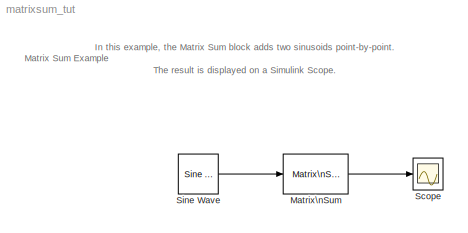
MODEL matrixsum_tut
KIND model
CONFIG AbsTol = auto
CONFIG FixedStep = auto
CONFIG MaxStep = auto
CONFIG MinStep = auto
CONFIG RelTol = 1e-3
CONFIG Solver = ode45
CONFIG SolverMode = Auto
CONFIG StartTime = 0.0
CONFIG StopTime = inf
BLOCK [Reference] Matrix\nSum  REF=dspmtrx3/Matrix\nSum
  Dim = Rows
  Ports = [1, 1]
  SourceBlock = dspmtrx3/Matrix\nSum
  SourceType = Matrix Sum
BLOCK [Scope] Scope
  DataFormat = StructureWithTime
  NumInputPorts = 1
  Ports = [1]
  TimeRange = 0.1
  YMax = 2
  YMin = -2
BLOCK [Reference] Sine Wave  REF=dspsrcs4/Sine Wave
  Amplitude = 1
  CompMethod = Trigonometric fcn
  Frequency = [10 20]
  OutComplex = Real
  Phase = 0
  Ports = [0, 1]
  ResetState = Restart at time zero
  SampleMode = Discrete
  SampleTime = 1/1000
  SamplesPerFrame = 1
  SourceBlock = dspsrcs4/Sine Wave
  SourceType = Sine Wave
  TableSize = Speed
  additionalParams = off
  dataType = double
  fracBitsMode = Best precision
  numFracBits = 14
  udDataType = sfix(16)
  wordLen = 16
ANNOTATION (root): In this example, the Matrix Sum block adds two sinusoids point-by-point.\nThe result is displayed on a Simulink Scope.
ANNOTATION (root): Matrix Sum Example
LINE Matrix\nSum:1 -> Scope:1
LINE Sine Wave:1 -> Matrix\nSum:1
